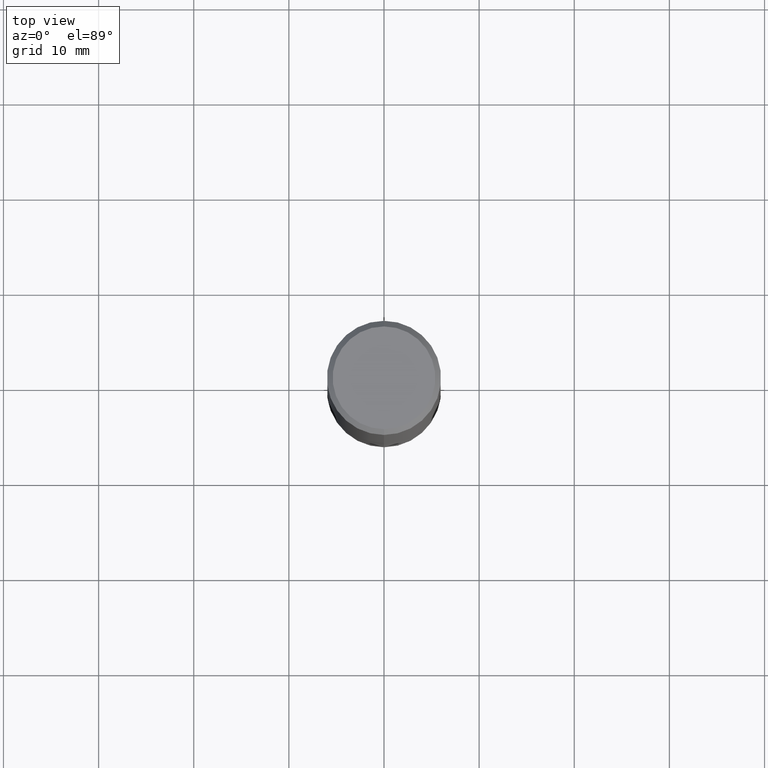
[diagram: clean part render]
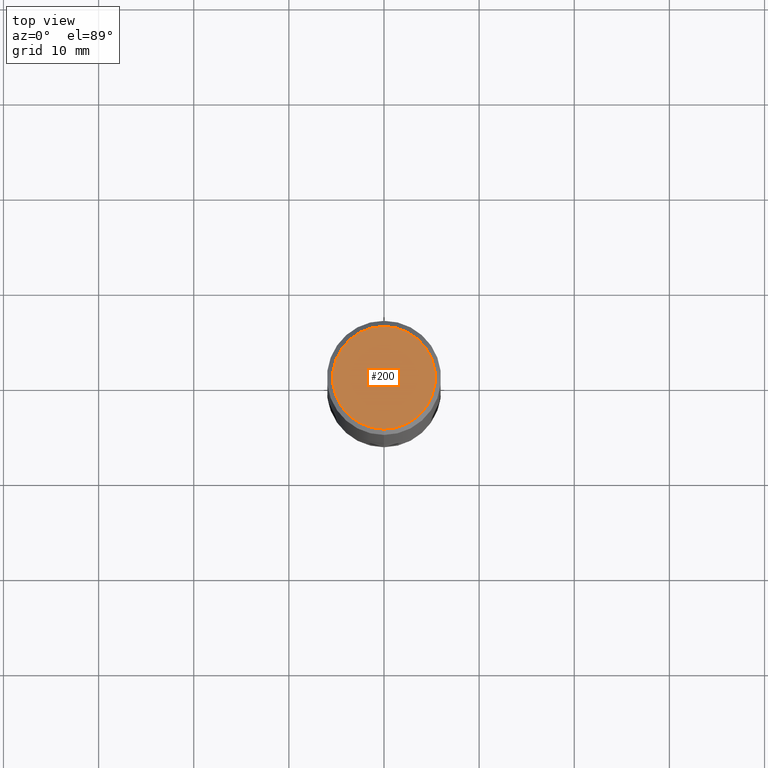
[diagram: same view with one face highlighted and labeled with its STEP entity id]
A machine part, top view. The second image highlights one B-rep face of the part: STEP entity #200.
In plain terms, the highlighted planar face has unit normal (-0, 0, 1).
Its self-contained STEP definition (entity closure, byte-faithful):
#168=VERTEX_POINT('',#323);
#190=VERTEX_POINT('',#348);
#200=ADVANCED_FACE('',(#359),#360,.T.);
#208=EDGE_CURVE('',#190,#168,#370,.T.);
#212=EDGE_CURVE('',#168,#190,#374,.T.);
#323=CARTESIAN_POINT('',(0.0,5.4,0.0));
#348=CARTESIAN_POINT('',(6.61287431064084E-016,-5.4,0.0));
#359=FACE_OUTER_BOUND('',#545,.T.);
#360=PLANE('',#546);
#370=CIRCLE('',#560,5.4);
#374=CIRCLE('',#565,5.4);
#545=EDGE_LOOP('',(#723,#724));
#546=AXIS2_PLACEMENT_3D('',#725,#726,#727);
#560=AXIS2_PLACEMENT_3D('',#740,#741,#742);
#565=AXIS2_PLACEMENT_3D('',#743,#744,#745);
#723=ORIENTED_EDGE('',*,*,#212,.F.);
#724=ORIENTED_EDGE('',*,*,#208,.F.);
#725=CARTESIAN_POINT('',(0.0,2.7,0.0));
#726=DIRECTION('',(-0.0,0.0,1.0));
#727=DIRECTION('',(0.0,-1.0,0.0));
#740=CARTESIAN_POINT('',(0.0,0.0,0.0));
#741=DIRECTION('',(0.0,0.0,-1.0));
#742=DIRECTION('',(0.0,1.0,0.0));
#743=CARTESIAN_POINT('',(0.0,0.0,0.0));
#744=DIRECTION('',(0.0,0.0,-1.0));
#745=DIRECTION('',(0.0,1.0,0.0));